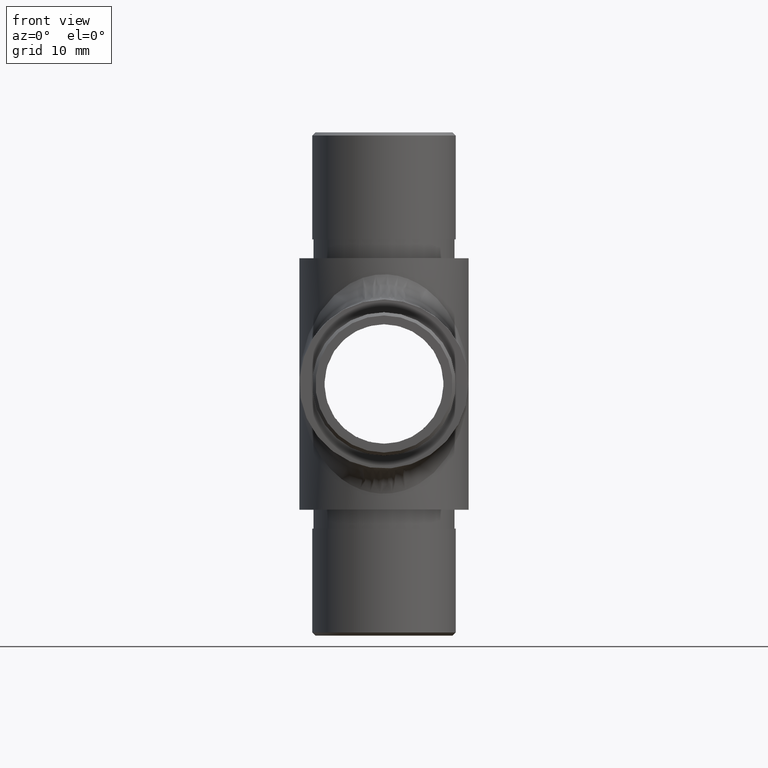
[diagram: clean part render]
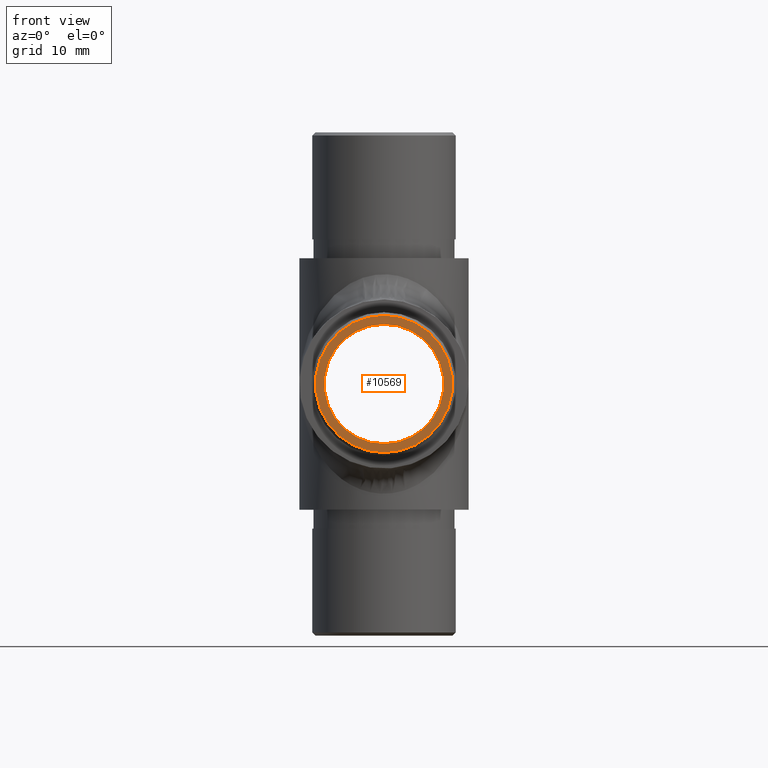
[diagram: same view with one face highlighted and labeled with its STEP entity id]
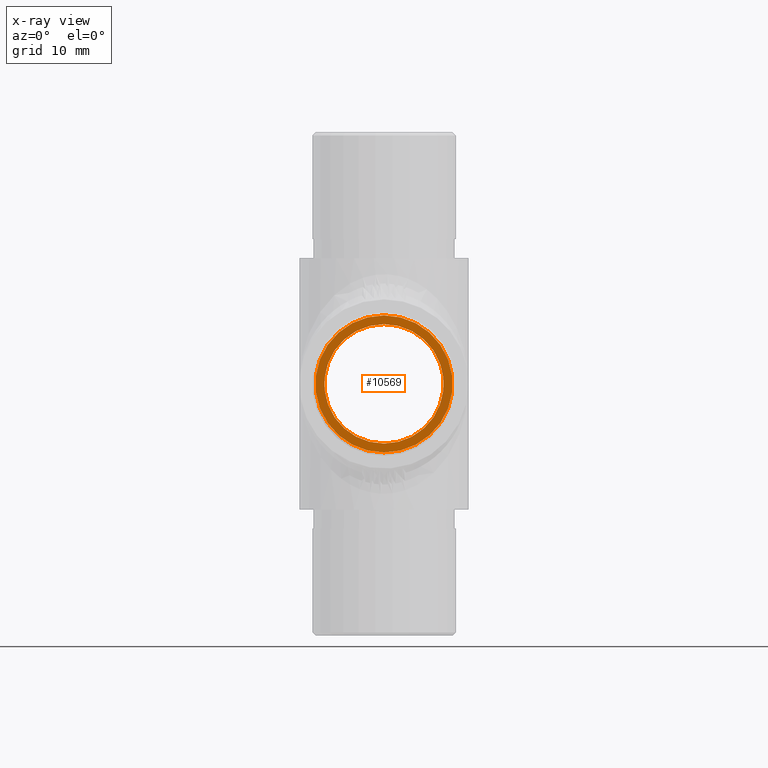
[diagram: x-ray of the same camera — body ghosted, the highlighted face saturated]
A machine part, front view. The second image highlights one B-rep face of the part: STEP entity #10569.
The next image is the same camera in x-ray: the body ghosted, the highlighted face saturated — about 0% of this face is hidden behind the body in this view.
In plain terms, the highlighted planar face has unit normal (0, -1, 0).
Its self-contained STEP definition (entity closure, byte-faithful):
#423 = ORIENTED_EDGE ( 'NONE', *, *, #7452, .T. ) ;
#868 = CARTESIAN_POINT ( 'NONE',  ( 0.0000000000000000000, -40.00000000000000000, 0.0000000000000000000 ) ) ;
#913 = CARTESIAN_POINT ( 'NONE',  ( 0.0000000000000000000, -40.00000000000000000, -10.89999999999996300 ) ) ;
#2155 = CARTESIAN_POINT ( 'NONE',  ( 0.0000000000000000000, -40.00000000000000000, 0.0000000000000000000 ) ) ;
#2580 = DIRECTION ( 'NONE',  ( 0.0000000000000000000, -1.000000000000000000, 0.0000000000000000000 ) ) ;
#2663 = CARTESIAN_POINT ( 'NONE',  ( 0.0000000000000000000, -40.00000000000000000, 0.0000000000000000000 ) ) ;
#3340 = EDGE_CURVE ( 'NONE', #6411, #6411, #8340, .T. ) ;
#3349 = FACE_BOUND ( 'NONE', #10151, .T. ) ;
#4495 = EDGE_LOOP ( 'NONE', ( #423 ) ) ;
#5993 = AXIS2_PLACEMENT_3D ( 'NONE', #2663, #2580, #8699 ) ;
#6253 = VERTEX_POINT ( 'NONE', #913 ) ;
#6411 = VERTEX_POINT ( 'NONE', #12695 ) ;
#6440 = PLANE ( 'NONE',  #11741 ) ;
#7303 = CIRCLE ( 'NONE', #5993, 10.89999999999996300 ) ;
#7452 = EDGE_CURVE ( 'NONE', #6253, #6253, #7303, .T. ) ;
#8340 = CIRCLE ( 'NONE', #10163, 9.500000000000000000 ) ;
#8699 = DIRECTION ( 'NONE',  ( 0.0000000000000000000, 0.0000000000000000000, -1.000000000000000000 ) ) ;
#9105 = DIRECTION ( 'NONE',  ( 0.0000000000000000000, 0.0000000000000000000, 1.000000000000000000 ) ) ;
#9731 = FACE_OUTER_BOUND ( 'NONE', #4495, .T. ) ;
#10095 = DIRECTION ( 'NONE',  ( -0.0000000000000000000, 1.000000000000000000, -0.0000000000000000000 ) ) ;
#10151 = EDGE_LOOP ( 'NONE', ( #10790 ) ) ;
#10163 = AXIS2_PLACEMENT_3D ( 'NONE', #2155, #10095, #9105 ) ;
#10569 = ADVANCED_FACE ( 'NONE', ( #9731, #3349 ), #6440, .T. ) ;
#10699 = DIRECTION ( 'NONE',  ( 0.0000000000000000000, 0.0000000000000000000, 1.000000000000000000 ) ) ;
#10790 = ORIENTED_EDGE ( 'NONE', *, *, #3340, .T. ) ;
#11741 = AXIS2_PLACEMENT_3D ( 'NONE', #868, #11884, #10699 ) ;
#11884 = DIRECTION ( 'NONE',  ( 0.0000000000000000000, -1.000000000000000000, 0.0000000000000000000 ) ) ;
#12695 = CARTESIAN_POINT ( 'NONE',  ( 0.0000000000000000000, -40.00000000000000000, 9.500000000000000000 ) ) ;